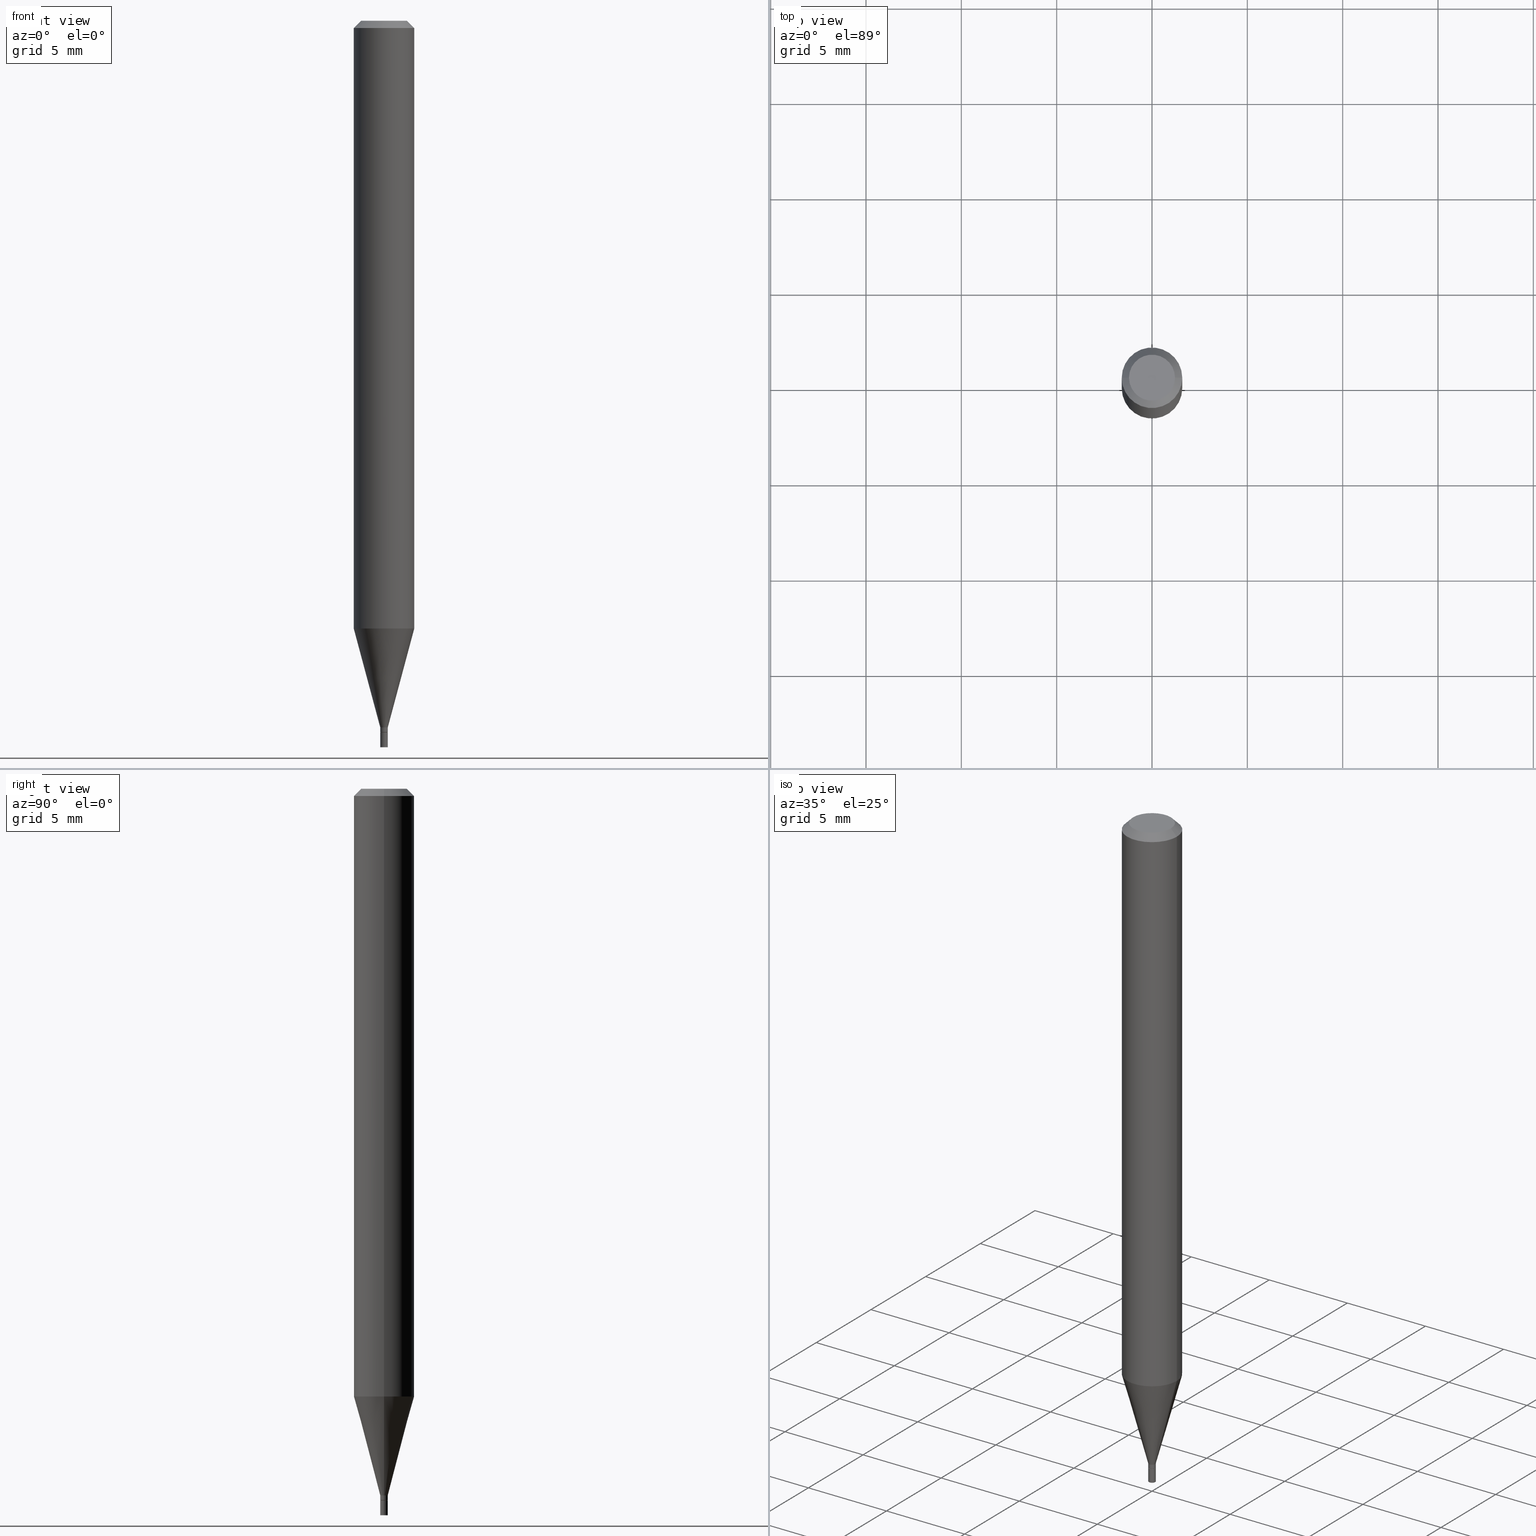
[diagram: canonical four-view strip — front | top / right | iso, engineering-drawing reading convention]
A machine part, canonical four-view strip (front | top / right | iso — engineering-drawing reading convention). The complete STEP part file that produces these views, byte-faithful:
ISO-10303-21;
HEADER;
FILE_DESCRIPTION (( 'STEP AP203' ),
    '1' );
FILE_NAME ('39701.STEP',
    '2024-03-12T19:04:09',
    ( '' ),
    ( '' ),
    'SwSTEP 2.0',
    'SolidWorks 2023',
    '' );
FILE_SCHEMA (( 'CONFIG_CONTROL_DESIGN' ));
ENDSEC;

DATA;
#1 = DIRECTION ( 'NONE',  ( 1.000000000000000000, -6.982962677686232001E-15, 0.000000000000000000 ) ) ;
#2 = FACE_OUTER_BOUND ( 'NONE', #138, .T. ) ;
#3 = EDGE_CURVE ( 'NONE', #212, #103, #213, .T. ) ;
#4 = DIRECTION ( 'NONE',  ( -2.445468806185136597E-29, 3.491481338843145583E-15, 1.000000000000000000 ) ) ;
#5 = CARTESIAN_POINT ( 'NONE',  ( 3.591170941882873536E-29, -5.127240346091159508E-15, -1.468500000000000139 ) ) ;
#6 = FACE_OUTER_BOUND ( 'NONE', #101, .T. ) ;
#7 = DIRECTION ( 'NONE',  ( -2.445468806185136597E-29, 3.491481338843145583E-15, 1.000000000000000000 ) ) ;
#8 = AXIS2_PLACEMENT_3D ( 'NONE', #391, #40, #116 ) ;
#9 = CC_DESIGN_APPROVAL ( #274, ( #430 ) ) ;
#10 = LINE ( 'NONE', #334, #170 ) ;
#11 = PRODUCT_DEFINITION ( 'UNKNOWN', '', #26, #179 ) ;
#12 = ORIENTED_EDGE ( 'NONE', *, *, #341, .F. ) ;
#13 = DIRECTION ( 'NONE',  ( 0.7071067811865521247, -2.468850131082304787E-15, 0.7071067811865430208 ) ) ;
#14 = ORIENTED_EDGE ( 'NONE', *, *, #273, .T. ) ;
#15 = CARTESIAN_POINT ( 'NONE',  ( 3.316907271900976096E-16, 0.04749999999999999362, -2.357791577261395620E-17 ) ) ;
#16 = CARTESIAN_POINT ( 'NONE',  ( 5.446710888598867806E-17, 0.007799999999994853585, -1.469000000000000083 ) ) ;
#17 = ORIENTED_EDGE ( 'NONE', *, *, #435, .T. ) ;
#18 = AXIS2_PLACEMENT_3D ( 'NONE', #366, #291, #188 ) ;
#19 = LOCAL_TIME ( 15, 4, 9.000000000000000000, #136 ) ;
#20 = DATE_AND_TIME ( #321, #386 ) ;
#21 = VERTEX_POINT ( 'NONE', #462 ) ;
#22 = EDGE_CURVE ( 'NONE', #417, #270, #393, .T. ) ;
#23 = EDGE_CURVE ( 'NONE', #377, #240, #163, .T. ) ;
#24 = ORIENTED_EDGE ( 'NONE', *, *, #359, .F. ) ;
#25 = AXIS2_PLACEMENT_3D ( 'NONE', #227, #363, #45 ) ;
#26 = PRODUCT_DEFINITION_FORMATION_WITH_SPECIFIED_SOURCE ( 'ANY', '', #156, .NOT_KNOWN. ) ;
#27 = ADVANCED_FACE ( 'NONE', ( #260 ), #152, .T. ) ;
#28 = ORIENTED_EDGE ( 'NONE', *, *, #3, .F. ) ;
#29 = CC_DESIGN_DATE_AND_TIME_ASSIGNMENT ( #247, #389, ( #11 ) ) ;
#30 = PERSON_AND_ORGANIZATION_ROLE ( 'design_supplier' ) ;
#31 = ORIENTED_EDGE ( 'NONE', *, *, #263, .F. ) ;
#32 = APPLICATION_CONTEXT ( 'configuration controlled 3d designs of mechanical parts and assemblies' ) ;
#33 = APPROVAL_ROLE ( '' ) ;
#34 = ORIENTED_EDGE ( 'NONE', *, *, #318, .T. ) ;
#35 = CARTESIAN_POINT ( 'NONE',  ( -0.007799999999999920712, -5.071818012701871486E-15, -1.468500000000000139 ) ) ;
#36 = DATE_AND_TIME ( #38, #288 ) ;
#37 = ORIENTED_EDGE ( 'NONE', *, *, #408, .F. ) ;
#38 = CALENDAR_DATE ( 2024, 12, 3 ) ;
#39 = DIRECTION ( 'NONE',  ( -2.445468806185136597E-29, 3.491481338843145583E-15, 1.000000000000000000 ) ) ;
#40 = DIRECTION ( 'NONE',  ( -2.445468806185136597E-29, 3.491481338843145583E-15, 1.000000000000000000 ) ) ;
#41 = DIRECTION ( 'NONE',  ( -2.438088387897960049E-29, 3.491481338843145188E-15, 1.000000000000000000 ) ) ;
#42 = CIRCLE ( 'NONE', #100, 0.06250000000000001388 ) ;
#43 = CARTESIAN_POINT ( 'NONE',  ( 0.000000000000000000, 0.000000000000000000, 0.000000000000000000 ) ) ;
#44 = DIRECTION ( 'NONE',  ( -2.445468806185136597E-29, 3.491481338843145583E-15, 1.000000000000000000 ) ) ;
#45 = DIRECTION ( 'NONE',  ( 1.000000000000000000, -6.982962677686261189E-15, 0.000000000000000000 ) ) ;
#46 = DIRECTION ( 'NONE',  ( 1.000000000000000000, -6.982962677686267499E-15, 0.000000000000000000 ) ) ;
#47 = FACE_OUTER_BOUND ( 'NONE', #246, .T. ) ;
#48 = LINE ( 'NONE', #266, #279 ) ;
#49 = CARTESIAN_POINT ( 'NONE',  ( 0.007799999999999982295, -5.183453195646533500E-15, -1.469000000000000083 ) ) ;
#50 = DIRECTION ( 'NONE',  ( 1.000000000000000000, -6.982962677686229634E-15, 0.000000000000000000 ) ) ;
#51 = VERTEX_POINT ( 'NONE', #75 ) ;
#52 = FACE_OUTER_BOUND ( 'NONE', #131, .T. ) ;
#53 = VECTOR ( 'NONE', #221, 39.37007874015748854 ) ;
#54 = EDGE_CURVE ( 'NONE', #385, #21, #117, .T. ) ;
#55 = CIRCLE ( 'NONE', #206, 0.007799999999999920712 ) ;
#56 = ORIENTED_EDGE ( 'NONE', *, *, #308, .F. ) ;
#57 = EDGE_LOOP ( 'NONE', ( #421, #161, #95, #203 ) ) ;
#58 = EDGE_CURVE ( 'NONE', #417, #240, #141, .T. ) ;
#59 = EDGE_LOOP ( 'NONE', ( #412, #342, #387, #28 ) ) ;
#60 = VECTOR ( 'NONE', #427, 39.37007874015748143 ) ;
#61 = APPROVAL_STATUS ( 'not_yet_approved' ) ;
#62 = APPROVAL_PERSON_ORGANIZATION ( #211, #404, #351 ) ;
#63 = ORIENTED_EDGE ( 'NONE', *, *, #397, .T. ) ;
#64 = EDGE_LOOP ( 'NONE', ( #453, #336, #349, #248 ) ) ;
#65 = LINE ( 'NONE', #432, #265 ) ;
#66 = PERSON_AND_ORGANIZATION_ROLE ( 'design_owner' ) ;
#67 = ORIENTED_EDGE ( 'NONE', *, *, #23, .T. ) ;
#68 = DIRECTION ( 'NONE',  ( 0.2588190451025216832, 1.565188264969619798E-15, 0.9659258262890679791 ) ) ;
#69 = AXIS2_PLACEMENT_3D ( 'NONE', #436, #398, #459 ) ;
#70 = ADVANCED_FACE ( 'NONE', ( #423 ), #361, .T. ) ;
#71 = AXIS2_PLACEMENT_3D ( 'NONE', #142, #286, #222 ) ;
#72 = CARTESIAN_POINT ( 'NONE',  ( 0.000000000000000000, 0.000000000000000000, 0.000000000000000000 ) ) ;
#73 = FACE_OUTER_BOUND ( 'NONE', #209, .T. ) ;
#74 = CONICAL_SURFACE ( 'NONE', #429, 0.06250000000000001388, 0.7853981633974395082 ) ;
#75 = CARTESIAN_POINT ( 'NONE',  ( -0.06250000000000001388, -1.772751486608234942E-15, -0.01499999999999999944 ) ) ;
#76 = CARTESIAN_POINT ( 'NONE',  ( -0.007799999999999640554, -4.487934451483375945E-15, -1.459000000000000297 ) ) ;
#77 = CC_DESIGN_PERSON_AND_ORGANIZATION_ASSIGNMENT ( #311, #199, ( #430 ) ) ;
#78 = CARTESIAN_POINT ( 'NONE',  ( -0.06250000000000008327, 4.440892098500632078E-16, -3.074334431409319967E-30 ) ) ;
#79 = PLANE ( 'NONE',  #455 ) ;
#80 = AXIS2_PLACEMENT_3D ( 'NONE', #295, #438, #330 ) ;
#81 = CARTESIAN_POINT ( 'NONE',  ( 0.000000000000000000, 0.000000000000000000, 0.000000000000000000 ) ) ;
#82 =( LENGTH_UNIT ( ) NAMED_UNIT ( * ) SI_UNIT ( $, .METRE. ) );
#83 = AXIS2_PLACEMENT_3D ( 'NONE', #72, #105, #275 ) ;
#84 = CARTESIAN_POINT ( 'NONE',  ( 0.007799999999999640554, -5.148538382258100273E-15, -1.459000000000000297 ) ) ;
#85 = DIRECTION ( 'NONE',  ( 1.000000000000000000, -6.982962677686267499E-15, 0.000000000000000000 ) ) ;
#86 = ADVANCED_FACE ( 'NONE', ( #399 ), #175, .T. ) ;
#87 = DIRECTION ( 'NONE',  ( 1.000000000000000000, -6.982962677686267499E-15, 4.852736867747366768E-29 ) ) ;
#88 = DIRECTION ( 'NONE',  ( 1.000000000000000000, -6.982962677686332186E-15, 0.000000000000000000 ) ) ;
#89 = VECTOR ( 'NONE', #325, 39.37007874015748143 ) ;
#90 = PRODUCT_DEFINITION_SHAPE ( 'NONE', 'NONE',  #11 ) ;
#91 = FACE_OUTER_BOUND ( 'NONE', #418, .T. ) ;
#92 = APPROVAL_ROLE ( '' ) ;
#93 = EDGE_CURVE ( 'NONE', #385, #51, #285, .T. ) ;
#94 = AXIS2_PLACEMENT_3D ( 'NONE', #139, #115, #1 ) ;
#95 = ORIENTED_EDGE ( 'NONE', *, *, #23, .F. ) ;
#96 = EDGE_CURVE ( 'NONE', #103, #212, #306, .T. ) ;
#97 = ORIENTED_EDGE ( 'NONE', *, *, #226, .T. ) ;
#98 = LENGTH_MEASURE_WITH_UNIT ( LENGTH_MEASURE( 0.02539999999999999897 ), #82 );
#99 = ORIENTED_EDGE ( 'NONE', *, *, #397, .F. ) ;
#100 = AXIS2_PLACEMENT_3D ( 'NONE', #123, #7, #85 ) ;
#101 = EDGE_LOOP ( 'NONE', ( #447, #17 ) ) ;
#102 = COORDINATED_UNIVERSAL_TIME_OFFSET ( 5, 0, .BEHIND. ) ;
#103 = VERTEX_POINT ( 'NONE', #84 ) ;
#104 = EDGE_CURVE ( 'NONE', #456, #51, #368, .T. ) ;
#105 = DIRECTION ( 'NONE',  ( 0.000000000000000000, 0.000000000000000000, 1.000000000000000000 ) ) ;
#106 = CYLINDRICAL_SURFACE ( 'NONE', #200, 0.007799999999999982295 ) ;
#107 = CYLINDRICAL_SURFACE ( 'NONE', #71, 0.007799999999999781067 ) ;
#108 = SHAPE_DEFINITION_REPRESENTATION ( #90, #135 ) ;
#109 = DIRECTION ( 'NONE',  ( -2.445468806185136597E-29, 3.491481338843145583E-15, 1.000000000000000000 ) ) ;
#110 = CARTESIAN_POINT ( 'NONE',  ( 0.007799999999999982295, -5.446710888595276024E-17, 3.803417885120821279E-31 ) ) ;
#111 = EDGE_CURVE ( 'NONE', #281, #212, #148, .T. ) ;
#112 = EDGE_CURVE ( 'NONE', #456, #128, #352, .T. ) ;
#113 = DIRECTION ( 'NONE',  ( -2.445468806185136877E-29, 3.491481338843145188E-15, 1.000000000000000000 ) ) ;
#114 = CARTESIAN_POINT ( 'NONE',  ( -0.007799999999999982295, -5.127681714123361178E-15, -1.469000000000000083 ) ) ;
#115 = DIRECTION ( 'NONE',  ( -2.445468806185136597E-29, 3.491481338843145583E-15, 1.000000000000000000 ) ) ;
#116 = DIRECTION ( 'NONE',  ( 1.000000000000000000, -6.982962677686332186E-15, 0.000000000000000000 ) ) ;
#117 = CIRCLE ( 'NONE', #25, 0.06250000000000015266 ) ;
#118 = DIRECTION ( 'NONE',  ( 1.000000000000000000, -6.982962677686299054E-15, 0.000000000000000000 ) ) ;
#119 = DIRECTION ( 'NONE',  ( 2.438088387897960049E-29, -3.491481338843145188E-15, -1.000000000000000000 ) ) ;
#120 = CYLINDRICAL_SURFACE ( 'NONE', #80, 0.06250000000000008327 ) ;
#121 = DIRECTION ( 'NONE',  ( -2.445468806185136597E-29, 3.491481338843145583E-15, 1.000000000000000000 ) ) ;
#122 = ADVANCED_FACE ( 'NONE', ( #47 ), #106, .T. ) ;
#123 = CARTESIAN_POINT ( 'NONE',  ( 3.668203209277705088E-31, -5.237222008264718399E-17, -0.01499999999999999944 ) ) ;
#124 = MANIFOLD_SOLID_BREP ( 'Body-Move/Copy2[2]', #413 ) ;
#125 = DIRECTION ( 'NONE',  ( -2.445468806185136597E-29, 3.491481338843145583E-15, 1.000000000000000000 ) ) ;
#126 = AXIS2_PLACEMENT_3D ( 'NONE', #357, #41, #182 ) ;
#127 = LINE ( 'NONE', #234, #401 ) ;
#128 = VERTEX_POINT ( 'NONE', #395 ) ;
#129 = EDGE_LOOP ( 'NONE', ( #420, #375, #202, #34 ) ) ;
#130 = CIRCLE ( 'NONE', #394, 0.007799999999999920712 ) ;
#131 = EDGE_LOOP ( 'NONE', ( #276, #451, #310, #174 ) ) ;
#132 = ORIENTED_EDGE ( 'NONE', *, *, #326, .T. ) ;
#133 = DATE_TIME_ROLE ( 'classification_date' ) ;
#134 = ORIENTED_EDGE ( 'NONE', *, *, #408, .T. ) ;
#135 = ADVANCED_BREP_SHAPE_REPRESENTATION ( '39701', ( #433, #124, #83 ), #345 ) ;
#136 = COORDINATED_UNIVERSAL_TIME_OFFSET ( 5, 0, .BEHIND. ) ;
#137 = ADVANCED_FACE ( 'NONE', ( #73 ), #217, .F. ) ;
#138 = EDGE_LOOP ( 'NONE', ( #347, #134, #353, #305 ) ) ;
#139 = CARTESIAN_POINT ( 'NONE',  ( 3.567938988224114792E-29, -5.094071273372150151E-15, -1.459000000000000297 ) ) ;
#140 = CARTESIAN_POINT ( 'NONE',  ( 0.007799999999999920712, -5.181707454977112786E-15, -1.468500000000000139 ) ) ;
#141 = LINE ( 'NONE', #149, #376 ) ;
#142 = CARTESIAN_POINT ( 'NONE',  ( 0.000000000000000000, 0.000000000000000000, 0.000000000000000000 ) ) ;
#143 = ADVANCED_FACE ( 'NONE', ( #322 ), #184, .T. ) ;
#144 = CIRCLE ( 'NONE', #301, 0.06250000000000001388 ) ;
#145 = CARTESIAN_POINT ( 'NONE',  ( 3.668203209277705088E-31, -5.237222008264718399E-17, -0.01499999999999999944 ) ) ;
#146 = FACE_OUTER_BOUND ( 'NONE', #59, .T. ) ;
#147 = LOCAL_TIME ( 15, 4, 9.000000000000000000, #102 ) ;
#148 = LINE ( 'NONE', #283, #60 ) ;
#149 = CARTESIAN_POINT ( 'NONE',  ( -0.007799999999999982295, 5.542233338928768869E-17, -3.836769370398817924E-31 ) ) ;
#150 = DIRECTION ( 'NONE',  ( 1.000000000000000000, -6.982962677686299054E-15, 0.000000000000000000 ) ) ;
#151 = CLOSED_SHELL ( 'NONE', ( #143, #137, #122, #380 ) ) ;
#152 = CONICAL_SURFACE ( 'NONE', #252, 0.06250000000000001388, 0.7853981633974395082 ) ;
#153 = ADVANCED_FACE ( 'NONE', ( #154 ), #120, .T. ) ;
#154 = FACE_OUTER_BOUND ( 'NONE', #268, .T. ) ;
#155 = CARTESIAN_POINT ( 'NONE',  ( 3.592393676285966338E-29, -5.128986086760581011E-15, -1.469000000000000083 ) ) ;
#156 = PRODUCT ( '39701', '39701', '', ( #348 ) ) ;
#157 = LINE ( 'NONE', #228, #443 ) ;
#158 = ORIENTED_EDGE ( 'NONE', *, *, #54, .F. ) ;
#159 = ADVANCED_FACE ( 'NONE', ( #6 ), #280, .F. ) ;
#160 = CARTESIAN_POINT ( 'NONE',  ( -0.04749999999999999362, 3.578768372314216422E-16, 2.845348956448684646E-16 ) ) ;
#161 = ORIENTED_EDGE ( 'NONE', *, *, #58, .T. ) ;
#162 = CC_DESIGN_PERSON_AND_ORGANIZATION_ASSIGNMENT ( #235, #30, ( #26 ) ) ;
#163 = CIRCLE ( 'NONE', #18, 0.007799999999999982295 ) ;
#164 = DIRECTION ( 'NONE',  ( -1.000000000000000000, 6.982962677686267499E-15, 0.000000000000000000 ) ) ;
#165 = CIRCLE ( 'NONE', #419, 0.007300000000000014810 ) ;
#166 = AXIS2_PLACEMENT_3D ( 'NONE', #155, #262, #88 ) ;
#167 = EDGE_LOOP ( 'NONE', ( #442, #272, #255, #31 ) ) ;
#168 = CIRCLE ( 'NONE', #186, 0.007799999999999982295 ) ;
#169 = COORDINATED_UNIVERSAL_TIME_OFFSET ( 5, 0, .BEHIND. ) ;
#170 = VECTOR ( 'NONE', #13, 39.37007874015748143 ) ;
#171 = ORIENTED_EDGE ( 'NONE', *, *, #388, .F. ) ;
#172 = CALENDAR_DATE ( 2024, 12, 3 ) ;
#173 = ORIENTED_EDGE ( 'NONE', *, *, #93, .F. ) ;
#174 = ORIENTED_EDGE ( 'NONE', *, *, #104, .F. ) ;
#175 = CONICAL_SURFACE ( 'NONE', #384, 0.007799999999999640554, 0.2617993877991502960 ) ;
#176 = SECURITY_CLASSIFICATION_LEVEL ( 'unclassified' ) ;
#177 = APPROVAL_PERSON_ORGANIZATION ( #422, #337, #33 ) ;
#178 = EDGE_LOOP ( 'NONE', ( #67, #298 ) ) ;
#179 = DESIGN_CONTEXT ( 'detailed design', #32, 'design' ) ;
#180 = PERSON_AND_ORGANIZATION ( #314, #355 ) ;
#181 = ADVANCED_FACE ( 'NONE', ( #2 ), #464, .T. ) ;
#182 = DIRECTION ( 'NONE',  ( 1.000000000000000000, -6.982962677686265922E-15, 4.876176775795935793E-29 ) ) ;
#183 = DIRECTION ( 'NONE',  ( 0.7071067811865412445, -7.319954787623233957E-15, -0.7071067811865536790 ) ) ;
#184 = CYLINDRICAL_SURFACE ( 'NONE', #414, 0.007799999999999982295 ) ;
#185 = LINE ( 'NONE', #323, #259 ) ;
#186 = AXIS2_PLACEMENT_3D ( 'NONE', #410, #125, #150 ) ;
#187 = CARTESIAN_POINT ( 'NONE',  ( 0.000000000000000000, 0.000000000000000000, 0.000000000000000000 ) ) ;
#188 = DIRECTION ( 'NONE',  ( 1.000000000000000000, -6.982962677686299054E-15, 0.000000000000000000 ) ) ;
#189 = DIRECTION ( 'NONE',  ( -2.445468806185136597E-29, 3.491481338843145583E-15, 1.000000000000000000 ) ) ;
#190 = CC_DESIGN_PERSON_AND_ORGANIZATION_ASSIGNMENT ( #356, #454, ( #11 ) ) ;
#191 = CARTESIAN_POINT ( 'NONE',  ( 3.567938988224114792E-29, -5.094071273372150151E-15, -1.459000000000000297 ) ) ;
#192 = DIRECTION ( 'NONE',  ( -0.7071067811865521247, 7.493145998870371515E-15, 0.7071067811865430208 ) ) ;
#193 = AXIS2_PLACEMENT_3D ( 'NONE', #371, #198, #329 ) ;
#194 = PLANE ( 'NONE',  #244 ) ;
#195 = VERTEX_POINT ( 'NONE', #466 ) ;
#196 = ADVANCED_FACE ( 'NONE', ( #258 ), #79, .F. ) ;
#197 = DIRECTION ( 'NONE',  ( -2.445468806185136597E-29, 3.491481338843145583E-15, 1.000000000000000000 ) ) ;
#198 = DIRECTION ( 'NONE',  ( -2.445468806185136597E-29, 3.491481338843145583E-15, 1.000000000000000000 ) ) ;
#199 = PERSON_AND_ORGANIZATION_ROLE ( 'classification_officer' ) ;
#200 = AXIS2_PLACEMENT_3D ( 'NONE', #43, #250, #219 ) ;
#201 = ORIENTED_EDGE ( 'NONE', *, *, #54, .T. ) ;
#202 = ORIENTED_EDGE ( 'NONE', *, *, #104, .T. ) ;
#203 = ORIENTED_EDGE ( 'NONE', *, *, #273, .F. ) ;
#204 = AXIS2_PLACEMENT_3D ( 'NONE', #367, #189, #331 ) ;
#205 = APPLICATION_CONTEXT ( 'configuration controlled 3d designs of mechanical parts and assemblies' ) ;
#206 = AXIS2_PLACEMENT_3D ( 'NONE', #445, #440, #50 ) ;
#207 = APPROVAL_DATE_TIME ( #36, #404 ) ;
#208 = EDGE_LOOP ( 'NONE', ( #344, #99 ) ) ;
#209 = EDGE_LOOP ( 'NONE', ( #24, #415 ) ) ;
#210 = CARTESIAN_POINT ( 'NONE',  ( -0.007300000000000014810, -5.074467239875982687E-15, -1.469000000000000083 ) ) ;
#211 = PERSON_AND_ORGANIZATION ( #314, #355 ) ;
#212 = VERTEX_POINT ( 'NONE', #76 ) ;
#213 = CIRCLE ( 'NONE', #69, 0.007799999999999640554 ) ;
#214 = AXIS2_PLACEMENT_3D ( 'NONE', #428, #44, #362 ) ;
#215 =( CONVERSION_BASED_UNIT ( 'INCH', #98 ) LENGTH_UNIT ( ) NAMED_UNIT ( #381 ) );
#216 = CC_DESIGN_APPROVAL ( #337, ( #11 ) ) ;
#217 = PLANE ( 'NONE',  #126 ) ;
#218 = APPROVAL_DATE_TIME ( #450, #274 ) ;
#219 = DIRECTION ( 'NONE',  ( 1.000000000000000000, -6.982962677686267499E-15, 4.876176775795935793E-29 ) ) ;
#220 = CARTESIAN_POINT ( 'NONE',  ( 0.06250000000000001388, -4.811533449433680977E-16, -0.01499999999999999944 ) ) ;
#221 = DIRECTION ( 'NONE',  ( -0.7071067811865412445, 2.468850131082191585E-15, -0.7071067811865536790 ) ) ;
#222 = DIRECTION ( 'NONE',  ( 1.000000000000000000, -6.982962677686266711E-15, 4.876176775795935232E-29 ) ) ;
#223 = VECTOR ( 'NONE', #183, 39.37007874015748854 ) ;
#224 = CARTESIAN_POINT ( 'NONE',  ( 3.668203209277704895E-29, -5.237222008264718177E-15, -1.500000000000000222 ) ) ;
#225 = DIRECTION ( 'NONE',  ( 1.000000000000000000, -6.982962677686332186E-15, 0.000000000000000000 ) ) ;
#226 = EDGE_CURVE ( 'NONE', #103, #21, #65, .T. ) ;
#227 = CARTESIAN_POINT ( 'NONE',  ( 3.068713211558588799E-29, -4.381309172833951587E-15, -1.254856820825981378 ) ) ;
#228 = CARTESIAN_POINT ( 'NONE',  ( -0.007799999999999640554, -5.038648939982864496E-15, -1.459000000000000297 ) ) ;
#229 = DIRECTION ( 'NONE',  ( -2.445468806185136597E-29, 3.491481338843145583E-15, 1.000000000000000000 ) ) ;
#230 = CIRCLE ( 'NONE', #214, 0.007300000000000014810 ) ;
#231 = EDGE_CURVE ( 'NONE', #128, #390, #320, .T. ) ;
#232 = CARTESIAN_POINT ( 'NONE',  ( 3.668203209277705088E-31, -5.237222008264718399E-17, -0.01499999999999999944 ) ) ;
#233 = AXIS2_PLACEMENT_3D ( 'NONE', #373, #229, #87 ) ;
#234 = CARTESIAN_POINT ( 'NONE',  ( 0.06250000000000008327, -4.364351673553922611E-16, 3.047610484872464074E-30 ) ) ;
#235 = PERSON_AND_ORGANIZATION ( #314, #355 ) ;
#236 = AXIS2_PLACEMENT_3D ( 'NONE', #81, #4, #328 ) ;
#237 = ORIENTED_EDGE ( 'NONE', *, *, #318, .F. ) ;
#238 = EDGE_CURVE ( 'NONE', #195, #278, #230, .T. ) ;
#239 = LOCAL_TIME ( 15, 4, 9.000000000000000000, #169 ) ;
#240 = VERTEX_POINT ( 'NONE', #114 ) ;
#241 = VERTEX_POINT ( 'NONE', #140 ) ;
#242 = APPROVAL_STATUS ( 'not_yet_approved' ) ;
#243 = ORIENTED_EDGE ( 'NONE', *, *, #93, .T. ) ;
#244 = AXIS2_PLACEMENT_3D ( 'NONE', #16, #119, #296 ) ;
#245 =( NAMED_UNIT ( * ) PLANE_ANGLE_UNIT ( ) SI_UNIT ( $, .RADIAN. ) );
#246 = EDGE_LOOP ( 'NONE', ( #307, #319, #14, #12 ) ) ;
#247 = DATE_AND_TIME ( #383, #19 ) ;
#248 = ORIENTED_EDGE ( 'NONE', *, *, #226, .F. ) ;
#249 = APPLICATION_PROTOCOL_DEFINITION ( 'international standard', 'config_control_design', 1994, #32 ) ;
#250 = DIRECTION ( 'NONE',  ( -2.445468806185136597E-29, 3.491481338843145583E-15, 1.000000000000000000 ) ) ;
#251 = CYLINDRICAL_SURFACE ( 'NONE', #338, 0.06250000000000008327 ) ;
#252 = AXIS2_PLACEMENT_3D ( 'NONE', #145, #289, #431 ) ;
#253 = CARTESIAN_POINT ( 'NONE',  ( -0.06250000000000001388, 3.840629472727445902E-16, -0.01499999999999999944 ) ) ;
#254 = CARTESIAN_POINT ( 'NONE',  ( 3.592393676285966338E-29, -5.128986086760581011E-15, -1.469000000000000083 ) ) ;
#255 = ORIENTED_EDGE ( 'NONE', *, *, #96, .F. ) ;
#256 = DIRECTION ( 'NONE',  ( -2.445468806185136597E-29, 3.491481338843145583E-15, 1.000000000000000000 ) ) ;
#257 = CARTESIAN_POINT ( 'NONE',  ( -6.958212115706747638E-45, 9.934482783937485755E-31, 2.845348956448708805E-16 ) ) ;
#258 = FACE_OUTER_BOUND ( 'NONE', #208, .T. ) ;
#259 = VECTOR ( 'NONE', #284, 39.37007874015748143 ) ;
#260 = FACE_OUTER_BOUND ( 'NONE', #129, .T. ) ;
#261 = FACE_OUTER_BOUND ( 'NONE', #64, .T. ) ;
#262 = DIRECTION ( 'NONE',  ( -2.445468806185136597E-29, 3.491481338843145583E-15, 1.000000000000000000 ) ) ;
#263 = EDGE_CURVE ( 'NONE', #241, #103, #185, .T. ) ;
#264 = DIRECTION ( 'NONE',  ( -2.445468806185136877E-29, 3.491481338843145188E-15, 1.000000000000000000 ) ) ;
#265 = VECTOR ( 'NONE', #68, 39.37007874015748143 ) ;
#266 = CARTESIAN_POINT ( 'NONE',  ( -0.007300000000000014810, -5.077116467050093099E-15, -1.469000000000000083 ) ) ;
#267 = APPROVAL_STATUS ( 'not_yet_approved' ) ;
#268 = EDGE_LOOP ( 'NONE', ( #132, #243, #171, #56 ) ) ;
#269 = ADVANCED_FACE ( 'NONE', ( #146 ), #107, .T. ) ;
#270 = VERTEX_POINT ( 'NONE', #396 ) ;
#271 = UNCERTAINTY_MEASURE_WITH_UNIT (LENGTH_MEASURE( 1.000000000000000082E-05 ), #215, 'distance_accuracy_value', 'NONE');
#272 = ORIENTED_EDGE ( 'NONE', *, *, #111, .T. ) ;
#273 = EDGE_CURVE ( 'NONE', #270, #377, #358, .T. ) ;
#274 = APPROVAL ( #267, 'UNSPECIFIED' ) ;
#275 = DIRECTION ( 'NONE',  ( 1.000000000000000000, 0.000000000000000000, 0.000000000000000000 ) ) ;
#276 = ORIENTED_EDGE ( 'NONE', *, *, #435, .F. ) ;
#277 = CALENDAR_DATE ( 2024, 12, 3 ) ;
#278 = VERTEX_POINT ( 'NONE', #210 ) ;
#279 = VECTOR ( 'NONE', #192, 39.37007874015748143 ) ;
#280 = PLANE ( 'NONE',  #365 ) ;
#281 = VERTEX_POINT ( 'NONE', #35 ) ;
#282 = PERSON_AND_ORGANIZATION ( #314, #355 ) ;
#283 = CARTESIAN_POINT ( 'NONE',  ( -0.007799999999999781067, 5.542233338928625888E-17, -3.836769370398718519E-31 ) ) ;
#284 = DIRECTION ( 'NONE',  ( -2.445468806185136877E-29, 3.491481338843145188E-15, 1.000000000000000000 ) ) ;
#285 = LINE ( 'NONE', #78, #287 ) ;
#286 = DIRECTION ( 'NONE',  ( -2.445468806185136597E-29, 3.491481338843145583E-15, 1.000000000000000000 ) ) ;
#287 = VECTOR ( 'NONE', #402, 39.37007874015748143 ) ;
#288 = LOCAL_TIME ( 15, 4, 9.000000000000000000, #309 ) ;
#289 = DIRECTION ( 'NONE',  ( 2.445468806185136597E-29, -3.491481338843145583E-15, -1.000000000000000000 ) ) ;
#290 = CARTESIAN_POINT ( 'NONE',  ( 0.000000000000000000, 0.000000000000000000, 0.000000000000000000 ) ) ;
#291 = DIRECTION ( 'NONE',  ( -2.445468806185136597E-29, 3.491481338843145583E-15, 1.000000000000000000 ) ) ;
#292 = EDGE_LOOP ( 'NONE', ( #315, #300, #97, #158 ) ) ;
#293 = FACE_OUTER_BOUND ( 'NONE', #178, .T. ) ;
#294 = AXIS2_PLACEMENT_3D ( 'NONE', #257, #434, #400 ) ;
#295 = CARTESIAN_POINT ( 'NONE',  ( 0.000000000000000000, 0.000000000000000000, 0.000000000000000000 ) ) ;
#296 = DIRECTION ( 'NONE',  ( -1.000000000000000000, 6.982962677686265922E-15, -4.876176775795935793E-29 ) ) ;
#297 = CARTESIAN_POINT ( 'NONE',  ( 3.668203209277705088E-31, -5.237222008264718399E-17, -0.01499999999999999944 ) ) ;
#298 = ORIENTED_EDGE ( 'NONE', *, *, #341, .T. ) ;
#299 = DIRECTION ( 'NONE',  ( -2.445468806185136597E-29, 3.491481338843145583E-15, 1.000000000000000000 ) ) ;
#300 = ORIENTED_EDGE ( 'NONE', *, *, #3, .T. ) ;
#301 = AXIS2_PLACEMENT_3D ( 'NONE', #232, #303, #46 ) ;
#302 = ADVANCED_FACE ( 'NONE', ( #316 ), #251, .T. ) ;
#303 = DIRECTION ( 'NONE',  ( -2.445468806185136597E-29, 3.491481338843145583E-15, 1.000000000000000000 ) ) ;
#304 = EDGE_CURVE ( 'NONE', #281, #241, #130, .T. ) ;
#305 = ORIENTED_EDGE ( 'NONE', *, *, #449, .F. ) ;
#306 = CIRCLE ( 'NONE', #94, 0.007799999999999640554 ) ;
#307 = ORIENTED_EDGE ( 'NONE', *, *, #58, .F. ) ;
#308 = EDGE_CURVE ( 'NONE', #21, #390, #127, .T. ) ;
#309 = COORDINATED_UNIVERSAL_TIME_OFFSET ( 5, 0, .BEHIND. ) ;
#310 = ORIENTED_EDGE ( 'NONE', *, *, #388, .T. ) ;
#311 = PERSON_AND_ORGANIZATION ( #314, #355 ) ;
#312 = EDGE_LOOP ( 'NONE', ( #173, #201, #379, #237 ) ) ;
#313 = APPROVAL_DATE_TIME ( #411, #337 ) ;
#314 = PERSON ( 'UNSPECIFIED', 'UNSPECIFIED', 'UNSPECIFIED', ('UNSPECIFIED'), ('UNSPECIFIED'), ('UNSPECIFIED') ) ;
#315 = ORIENTED_EDGE ( 'NONE', *, *, #372, .F. ) ;
#316 = FACE_OUTER_BOUND ( 'NONE', #312, .T. ) ;
#317 = COORDINATED_UNIVERSAL_TIME_OFFSET ( 5, 0, .BEHIND. ) ;
#318 = EDGE_CURVE ( 'NONE', #51, #390, #144, .T. ) ;
#319 = ORIENTED_EDGE ( 'NONE', *, *, #22, .T. ) ;
#320 = LINE ( 'NONE', #220, #223 ) ;
#321 = CALENDAR_DATE ( 2024, 12, 3 ) ;
#322 = FACE_OUTER_BOUND ( 'NONE', #57, .T. ) ;
#323 = CARTESIAN_POINT ( 'NONE',  ( 0.007799999999999781067, -5.446710888595134892E-17, 3.803417885120722751E-31 ) ) ;
#324 = DIRECTION ( 'NONE',  ( -2.445468806185136597E-29, 3.491481338843145583E-15, 1.000000000000000000 ) ) ;
#325 = DIRECTION ( 'NONE',  ( -2.445468806185136877E-29, 3.491481338843145188E-15, 1.000000000000000000 ) ) ;
#326 = EDGE_CURVE ( 'NONE', #21, #385, #426, .T. ) ;
#327 = DIRECTION ( 'NONE',  ( 1.000000000000000000, -6.982962677686232001E-15, 0.000000000000000000 ) ) ;
#328 = DIRECTION ( 'NONE',  ( 1.000000000000000000, -6.982962677686266711E-15, 4.876176775795935232E-29 ) ) ;
#329 = DIRECTION ( 'NONE',  ( 1.000000000000000000, -6.982962677686261189E-15, 0.000000000000000000 ) ) ;
#330 = DIRECTION ( 'NONE',  ( 1.000000000000000000, -6.982962677686266711E-15, 4.876176775795935793E-29 ) ) ;
#331 = DIRECTION ( 'NONE',  ( 1.000000000000000000, -6.982962677686232001E-15, 0.000000000000000000 ) ) ;
#332 = DIRECTION ( 'NONE',  ( 2.445468806185136597E-29, -3.491481338843145583E-15, -1.000000000000000000 ) ) ;
#333 = CC_DESIGN_SECURITY_CLASSIFICATION ( #430, ( #26 ) ) ;
#334 = CARTESIAN_POINT ( 'NONE',  ( 0.007300000000000014810, -5.179961714307691282E-15, -1.469000000000000083 ) ) ;
#335 = DIRECTION ( 'NONE',  ( 1.000000000000000000, -6.982962677686299054E-15, 0.000000000000000000 ) ) ;
#336 = ORIENTED_EDGE ( 'NONE', *, *, #372, .T. ) ;
#337 = APPROVAL ( #242, 'UNSPECIFIED' ) ;
#338 = AXIS2_PLACEMENT_3D ( 'NONE', #290, #256, #457 ) ;
#339 = ORIENTED_EDGE ( 'NONE', *, *, #304, .F. ) ;
#340 = CC_DESIGN_APPROVAL ( #404, ( #26 ) ) ;
#341 = EDGE_CURVE ( 'NONE', #240, #377, #446, .T. ) ;
#342 = ORIENTED_EDGE ( 'NONE', *, *, #304, .T. ) ;
#343 = CONICAL_SURFACE ( 'NONE', #204, 0.007799999999999640554, 0.2617993877991502960 ) ;
#344 = ORIENTED_EDGE ( 'NONE', *, *, #238, .F. ) ;
#345 =( GEOMETRIC_REPRESENTATION_CONTEXT ( 3 ) GLOBAL_UNCERTAINTY_ASSIGNED_CONTEXT ( ( #271 ) ) GLOBAL_UNIT_ASSIGNED_CONTEXT ( ( #215, #245, #392 ) ) REPRESENTATION_CONTEXT ( 'NONE', 'WORKASPACE' ) );
#346 = PERSON_AND_ORGANIZATION_ROLE ( 'creator' ) ;
#347 = ORIENTED_EDGE ( 'NONE', *, *, #238, .T. ) ;
#348 = MECHANICAL_CONTEXT ( 'NONE', #205, 'mechanical' ) ;
#349 = ORIENTED_EDGE ( 'NONE', *, *, #326, .F. ) ;
#350 = ADVANCED_FACE ( 'NONE', ( #261 ), #343, .T. ) ;
#351 = APPROVAL_ROLE ( '' ) ;
#352 = CIRCLE ( 'NONE', #294, 0.04749999999999999362 ) ;
#353 = ORIENTED_EDGE ( 'NONE', *, *, #448, .F. ) ;
#354 = DIRECTION ( 'NONE',  ( 1.000000000000000000, -6.982962677686265922E-15, 4.876176775795935793E-29 ) ) ;
#355 = ORGANIZATION ( 'UNSPECIFIED', 'UNSPECIFIED', '' ) ;
#356 = PERSON_AND_ORGANIZATION ( #314, #355 ) ;
#357 = CARTESIAN_POINT ( 'NONE',  ( 3.576687321579069994E-29, -5.368277968210015545E-15, -1.500000000000000222 ) ) ;
#358 = LINE ( 'NONE', #110, #89 ) ;
#359 = EDGE_CURVE ( 'NONE', #270, #417, #168, .T. ) ;
#360 = CC_DESIGN_DATE_AND_TIME_ASSIGNMENT ( #20, #133, ( #430 ) ) ;
#361 = CYLINDRICAL_SURFACE ( 'NONE', #236, 0.007799999999999781067 ) ;
#362 = DIRECTION ( 'NONE',  ( 1.000000000000000000, -6.982962677686332186E-15, 0.000000000000000000 ) ) ;
#363 = DIRECTION ( 'NONE',  ( -2.445468806185136597E-29, 3.491481338843145583E-15, 1.000000000000000000 ) ) ;
#364 = AXIS2_PLACEMENT_3D ( 'NONE', #224, #109, #118 ) ;
#365 = AXIS2_PLACEMENT_3D ( 'NONE', #15, #424, #463 ) ;
#366 = CARTESIAN_POINT ( 'NONE',  ( 3.592393676285966338E-29, -5.128986086760581011E-15, -1.469000000000000083 ) ) ;
#367 = CARTESIAN_POINT ( 'NONE',  ( 3.567938988224114792E-29, -5.094071273372150151E-15, -1.459000000000000297 ) ) ;
#368 = LINE ( 'NONE', #253, #53 ) ;
#369 = CARTESIAN_POINT ( 'NONE',  ( 0.06250000000000001388, -4.888073874380389458E-16, -0.01499999999999999944 ) ) ;
#370 = CC_DESIGN_PERSON_AND_ORGANIZATION_ASSIGNMENT ( #180, #346, ( #26 ) ) ;
#371 = CARTESIAN_POINT ( 'NONE',  ( 3.068713211558588799E-29, -4.381309172833951587E-15, -1.254856820825981378 ) ) ;
#372 = EDGE_CURVE ( 'NONE', #212, #385, #157, .T. ) ;
#373 = CARTESIAN_POINT ( 'NONE',  ( -6.958212115706747638E-45, 9.934482783937485755E-31, 2.845348956448708805E-16 ) ) ;
#374 = CARTESIAN_POINT ( 'NONE',  ( -0.06250000000000015266, -3.937219962983887393E-15, -1.254856820825981378 ) ) ;
#375 = ORIENTED_EDGE ( 'NONE', *, *, #112, .F. ) ;
#376 = VECTOR ( 'NONE', #113, 39.37007874015748143 ) ;
#377 = VERTEX_POINT ( 'NONE', #49 ) ;
#378 = CONICAL_SURFACE ( 'NONE', #166, 0.007300000000000014810, 0.7853981633974547183 ) ;
#379 = ORIENTED_EDGE ( 'NONE', *, *, #308, .T. ) ;
#380 = ADVANCED_FACE ( 'NONE', ( #293 ), #194, .F. ) ;
#381 = DIMENSIONAL_EXPONENTS ( 1.000000000000000000, 0.000000000000000000, 0.000000000000000000, 0.000000000000000000, 0.000000000000000000, 0.000000000000000000, 0.000000000000000000 ) ;
#382 = ORIENTED_EDGE ( 'NONE', *, *, #449, .T. ) ;
#383 = CALENDAR_DATE ( 2024, 12, 3 ) ;
#384 = AXIS2_PLACEMENT_3D ( 'NONE', #191, #39, #327 ) ;
#385 = VERTEX_POINT ( 'NONE', #374 ) ;
#386 = LOCAL_TIME ( 15, 4, 9.000000000000000000, #317 ) ;
#387 = ORIENTED_EDGE ( 'NONE', *, *, #263, .T. ) ;
#388 = EDGE_CURVE ( 'NONE', #390, #51, #42, .T. ) ;
#389 = DATE_TIME_ROLE ( 'creation_date' ) ;
#390 = VERTEX_POINT ( 'NONE', #369 ) ;
#391 = CARTESIAN_POINT ( 'NONE',  ( 3.592393676285966338E-29, -5.128986086760581011E-15, -1.469000000000000083 ) ) ;
#392 =( NAMED_UNIT ( * ) SI_UNIT ( $, .STERADIAN. ) SOLID_ANGLE_UNIT ( ) );
#393 = CIRCLE ( 'NONE', #364, 0.007799999999999982295 ) ;
#394 = AXIS2_PLACEMENT_3D ( 'NONE', #5, #121, #403 ) ;
#395 = CARTESIAN_POINT ( 'NONE',  ( 0.04749999999999999362, -4.035134999187574186E-16, 2.845348956448734443E-16 ) ) ;
#396 = CARTESIAN_POINT ( 'NONE',  ( 0.007799999999999982295, -5.291689117150671455E-15, -1.500000000000000222 ) ) ;
#397 = EDGE_CURVE ( 'NONE', #278, #195, #165, .T. ) ;
#398 = DIRECTION ( 'NONE',  ( -2.445468806185136597E-29, 3.491481338843145583E-15, 1.000000000000000000 ) ) ;
#399 = FACE_OUTER_BOUND ( 'NONE', #292, .T. ) ;
#400 = DIRECTION ( 'NONE',  ( 1.000000000000000000, -6.982962677686267499E-15, 4.852736867747366768E-29 ) ) ;
#401 = VECTOR ( 'NONE', #264, 39.37007874015748143 ) ;
#402 = DIRECTION ( 'NONE',  ( -2.445468806185136877E-29, 3.491481338843145188E-15, 1.000000000000000000 ) ) ;
#403 = DIRECTION ( 'NONE',  ( 1.000000000000000000, -6.982962677686229634E-15, 0.000000000000000000 ) ) ;
#404 = APPROVAL ( #61, 'UNSPECIFIED' ) ;
#405 = CARTESIAN_POINT ( 'NONE',  ( -0.007799999999999982295, -5.127681714123361178E-15, -1.500000000000000222 ) ) ;
#406 = CARTESIAN_POINT ( 'NONE',  ( 3.592393676285966338E-29, -5.128986086760581011E-15, -1.469000000000000083 ) ) ;
#407 = AXIS2_PLACEMENT_3D ( 'NONE', #406, #197, #335 ) ;
#408 = EDGE_CURVE ( 'NONE', #278, #281, #48, .T. ) ;
#409 = CIRCLE ( 'NONE', #233, 0.04749999999999999362 ) ;
#410 = CARTESIAN_POINT ( 'NONE',  ( 3.668203209277704895E-29, -5.237222008264718177E-15, -1.500000000000000222 ) ) ;
#411 = DATE_AND_TIME ( #172, #147 ) ;
#412 = ORIENTED_EDGE ( 'NONE', *, *, #111, .F. ) ;
#413 = CLOSED_SHELL ( 'NONE', ( #70, #181, #425, #153, #350, #86, #302, #27, #159, #196, #416, #269 ) ) ;
#414 = AXIS2_PLACEMENT_3D ( 'NONE', #187, #324, #465 ) ;
#415 = ORIENTED_EDGE ( 'NONE', *, *, #22, .F. ) ;
#416 = ADVANCED_FACE ( 'NONE', ( #91 ), #378, .T. ) ;
#417 = VERTEX_POINT ( 'NONE', #405 ) ;
#418 = EDGE_LOOP ( 'NONE', ( #37, #63, #382, #339 ) ) ;
#419 = AXIS2_PLACEMENT_3D ( 'NONE', #439, #299, #225 ) ;
#420 = ORIENTED_EDGE ( 'NONE', *, *, #231, .F. ) ;
#421 = ORIENTED_EDGE ( 'NONE', *, *, #359, .T. ) ;
#422 = PERSON_AND_ORGANIZATION ( #314, #355 ) ;
#423 = FACE_OUTER_BOUND ( 'NONE', #167, .T. ) ;
#424 = DIRECTION ( 'NONE',  ( 2.438088387897960049E-29, -3.491481338843145188E-15, -1.000000000000000000 ) ) ;
#425 = ADVANCED_FACE ( 'NONE', ( #52 ), #74, .T. ) ;
#426 = CIRCLE ( 'NONE', #193, 0.06250000000000015266 ) ;
#427 = DIRECTION ( 'NONE',  ( -2.445468806185136877E-29, 3.491481338843145188E-15, 1.000000000000000000 ) ) ;
#428 = CARTESIAN_POINT ( 'NONE',  ( 3.592393676285966338E-29, -5.128986086760581011E-15, -1.469000000000000083 ) ) ;
#429 = AXIS2_PLACEMENT_3D ( 'NONE', #297, #332, #164 ) ;
#430 = SECURITY_CLASSIFICATION ( '', '', #176 ) ;
#431 = DIRECTION ( 'NONE',  ( -1.000000000000000000, 6.982962677686267499E-15, 0.000000000000000000 ) ) ;
#432 = CARTESIAN_POINT ( 'NONE',  ( 0.007799999999999640554, -5.148538382258100273E-15, -1.459000000000000297 ) ) ;
#433 = MANIFOLD_SOLID_BREP ( 'Body-Move/Copy2[1]', #151 ) ;
#434 = DIRECTION ( 'NONE',  ( -2.445468806185136597E-29, 3.491481338843145583E-15, 1.000000000000000000 ) ) ;
#435 = EDGE_CURVE ( 'NONE', #128, #456, #409, .T. ) ;
#436 = CARTESIAN_POINT ( 'NONE',  ( 3.567938988224114792E-29, -5.094071273372150151E-15, -1.459000000000000297 ) ) ;
#437 = DIRECTION ( 'NONE',  ( -0.2588190451025216832, 5.211531920934551831E-15, 0.9659258262890679791 ) ) ;
#438 = DIRECTION ( 'NONE',  ( -2.445468806185136597E-29, 3.491481338843145583E-15, 1.000000000000000000 ) ) ;
#439 = CARTESIAN_POINT ( 'NONE',  ( 3.592393676285966338E-29, -5.128986086760581011E-15, -1.469000000000000083 ) ) ;
#440 = DIRECTION ( 'NONE',  ( -2.445468806185136597E-29, 3.491481338843145583E-15, 1.000000000000000000 ) ) ;
#441 = CC_DESIGN_PERSON_AND_ORGANIZATION_ASSIGNMENT ( #282, #66, ( #156 ) ) ;
#442 = ORIENTED_EDGE ( 'NONE', *, *, #448, .T. ) ;
#443 = VECTOR ( 'NONE', #437, 39.37007874015748143 ) ;
#444 = APPROVAL_PERSON_ORGANIZATION ( #461, #274, #92 ) ;
#445 = CARTESIAN_POINT ( 'NONE',  ( 3.591170941882873536E-29, -5.127240346091159508E-15, -1.468500000000000139 ) ) ;
#446 = CIRCLE ( 'NONE', #407, 0.007799999999999982295 ) ;
#447 = ORIENTED_EDGE ( 'NONE', *, *, #112, .T. ) ;
#448 = EDGE_CURVE ( 'NONE', #241, #281, #55, .T. ) ;
#449 = EDGE_CURVE ( 'NONE', #195, #241, #10, .T. ) ;
#450 = DATE_AND_TIME ( #277, #239 ) ;
#451 = ORIENTED_EDGE ( 'NONE', *, *, #231, .T. ) ;
#452 = APPLICATION_PROTOCOL_DEFINITION ( 'international standard', 'config_control_design', 1994, #205 ) ;
#453 = ORIENTED_EDGE ( 'NONE', *, *, #96, .T. ) ;
#454 = PERSON_AND_ORGANIZATION_ROLE ( 'creator' ) ;
#455 = AXIS2_PLACEMENT_3D ( 'NONE', #254, #460, #354 ) ;
#456 = VERTEX_POINT ( 'NONE', #160 ) ;
#457 = DIRECTION ( 'NONE',  ( 1.000000000000000000, -6.982962677686266711E-15, 4.876176775795935793E-29 ) ) ;
#458 = PRODUCT_RELATED_PRODUCT_CATEGORY ( 'detail', '', ( #156 ) ) ;
#459 = DIRECTION ( 'NONE',  ( 1.000000000000000000, -6.982962677686232001E-15, 0.000000000000000000 ) ) ;
#460 = DIRECTION ( 'NONE',  ( -2.438088387897960049E-29, 3.491481338843145188E-15, 1.000000000000000000 ) ) ;
#461 = PERSON_AND_ORGANIZATION ( #314, #355 ) ;
#462 = CARTESIAN_POINT ( 'NONE',  ( 0.06250000000000015266, -4.817744340189344045E-15, -1.254856820825981378 ) ) ;
#463 = DIRECTION ( 'NONE',  ( -1.000000000000000000, 6.982962677686265922E-15, -4.876176775795935793E-29 ) ) ;
#464 = CONICAL_SURFACE ( 'NONE', #8, 0.007300000000000014810, 0.7853981633974547183 ) ;
#465 = DIRECTION ( 'NONE',  ( 1.000000000000000000, -6.982962677686267499E-15, 4.876176775795935793E-29 ) ) ;
#466 = CARTESIAN_POINT ( 'NONE',  ( 0.007300000000000014810, -5.179961714307691282E-15, -1.469000000000000083 ) ) ;
ENDSEC;
END-ISO-10303-21;
